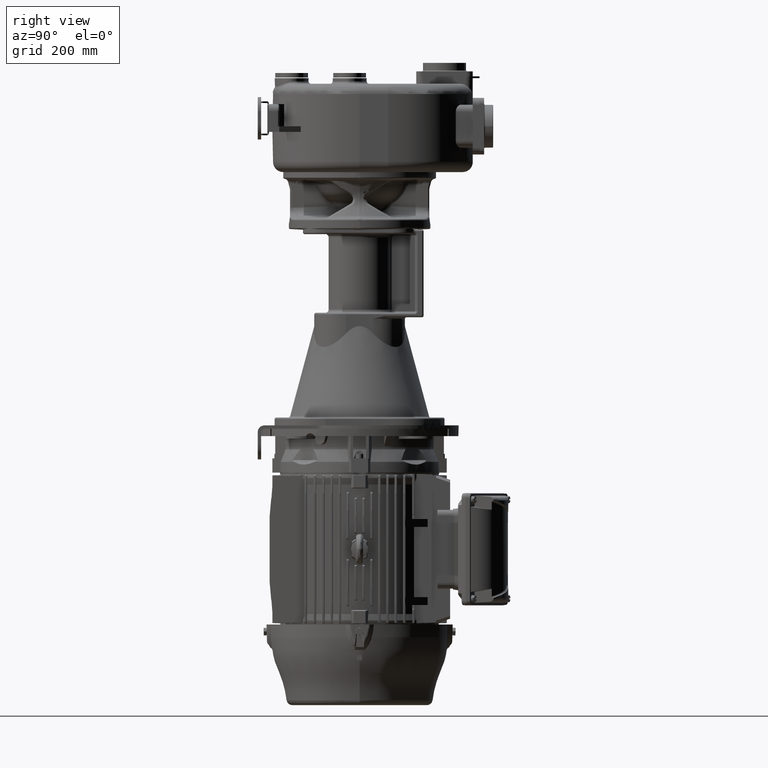
[diagram: clean part render]
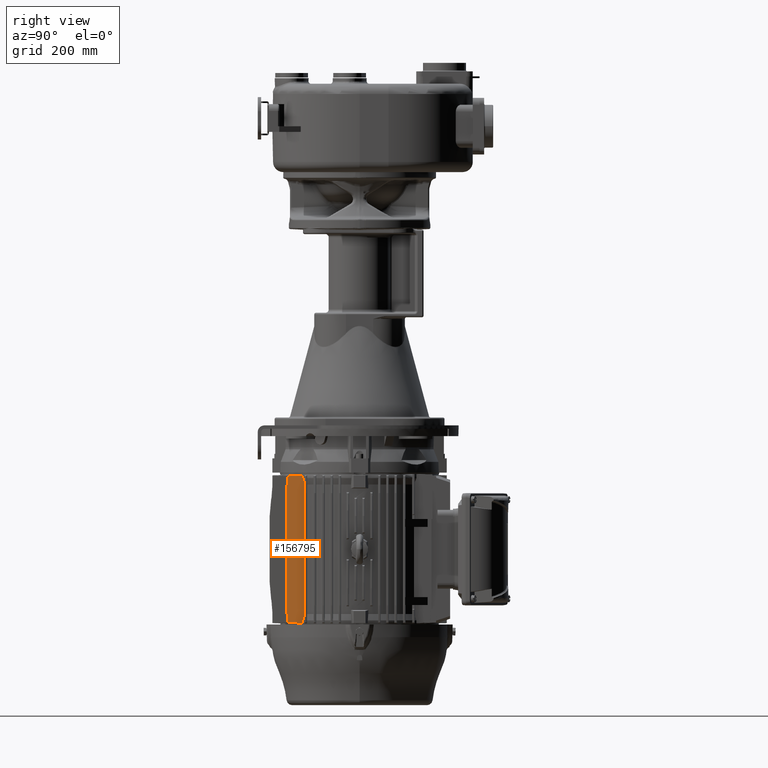
[diagram: same view with one face highlighted and labeled with its STEP entity id]
A machine part, right view. The second image highlights one B-rep face of the part: STEP entity #156795.
In plain terms, the highlighted planar face has unit normal (-0.9994, 0.0349, 0).
Its self-contained STEP definition (entity closure, byte-faithful):
#162=DIRECTION('',(0.E0,0.E0,-1.E0));
#163=VECTOR('',#162,5.080310671573E0);
#164=CARTESIAN_POINT('',(9.754995855830E1,5.958085050513E1,-6.405624659906E2));
#165=LINE('',#164,#163);
#33847=DIRECTION('',(1.398620638962E-14,1.258758575066E-14,-1.E0));
#33848=VECTOR('',#33847,5.080310671574E0);
#33849=CARTESIAN_POINT('',(9.754995855830E1,5.958085050513E1,
-8.969572233378E2));
#33850=LINE('',#33849,#33848);
#62765=CARTESIAN_POINT('',(9.754995855830E1,5.958085050513E1,
-9.020375340094E2));
#62766=CARTESIAN_POINT('',(9.752591515402E1,5.889233749030E1,
-9.019957928817E2));
#62767=CARTESIAN_POINT('',(9.747757728080E1,5.750812190960E1,
-9.019114117823E2));
#62768=CARTESIAN_POINT('',(9.740431481074E1,5.541015926105E1,
-9.017821377926E2));
#62769=CARTESIAN_POINT('',(9.733030408146E1,5.329076927190E1,
-9.016501778382E2));
#62770=CARTESIAN_POINT('',(9.725517344569E1,5.113930935687E1,
-9.015148572553E2));
#62771=CARTESIAN_POINT('',(9.717962708951E1,4.897594476686E1,
-9.013774445759E2));
#62772=CARTESIAN_POINT('',(9.710341428974E1,4.679349572937E1,
-9.012375046556E2));
#62773=CARTESIAN_POINT('',(9.702597563933E1,4.457594292261E1,
-9.010940005068E2));
#62774=CARTESIAN_POINT('',(9.694755482424E1,4.233026459906E1,
-9.009473694191E2));
#62775=CARTESIAN_POINT('',(9.686792439635E1,4.004994749715E1,
-9.007971776297E2));
#62776=CARTESIAN_POINT('',(9.678702288350E1,3.773323128451E1,
-9.006432873995E2));
#62777=CARTESIAN_POINT('',(9.670541780304E1,3.539636753134E1,
-9.004867787679E2));
#62778=CARTESIAN_POINT('',(9.664995732060E1,3.380818710921E1,
-9.003795609396E2));
#62779=CARTESIAN_POINT('',(9.662201182015E1,3.300793268023E1,
-9.003253223548E2));
#62793=DIRECTION('',(-3.489949670505E-2,-9.993908270190E-1,0.E0));
#62794=VECTOR('',#62793,1.500914316446E0);
#62795=CARTESIAN_POINT('',(9.662201182015E1,3.300793268023E1,-8.863E2));
#62796=LINE('',#62795,#62794);
#62809=DIRECTION('',(3.489949670505E-2,9.993908270190E-1,0.E0));
#62810=VECTOR('',#62809,1.500914316446E0);
#62811=CARTESIAN_POINT('',(9.656963066591E1,3.150793268023E1,-6.563E2));
#62812=LINE('',#62811,#62810);
#62830=CARTESIAN_POINT('',(9.662201182015E1,3.300793268023E1,
-6.422746776452E2));
#62831=CARTESIAN_POINT('',(9.664999466193E1,3.380925642489E1,
-6.422203665858E2));
#62832=CARTESIAN_POINT('',(9.670552311650E1,3.539938331430E1,
-6.421130179679E2));
#62833=CARTESIAN_POINT('',(9.678720931827E1,3.773857007786E1,
-6.419563561081E2));
#62834=CARTESIAN_POINT('',(9.686817322349E1,4.005707297409E1,
-6.418023507578E2));
#62835=CARTESIAN_POINT('',(9.694784458895E1,4.233856237466E1,
-6.416520862205E2));
#62836=CARTESIAN_POINT('',(9.702628870094E1,4.458490783406E1,
-6.415054166312E2));
#62837=CARTESIAN_POINT('',(9.710373270684E1,4.680261400218E1,
-6.413619079811E2));
#62838=CARTESIAN_POINT('',(9.717993206681E1,4.898467817414E1,
-6.412219981514E2));
#62839=CARTESIAN_POINT('',(9.725545296414E1,5.114731371795E1,
-6.410846369942E2));
#62840=CARTESIAN_POINT('',(9.733053733288E1,5.329744871869E1,
-6.409494044746E2));
#62841=CARTESIAN_POINT('',(9.740448646340E1,5.541507475015E1,
-6.408175581447E2));
#62842=CARTESIAN_POINT('',(9.747767199361E1,5.751083412972E1,
-6.406884225103E2));
#62843=CARTESIAN_POINT('',(9.752594842146E1,5.889329014526E1,
-6.406041493636E2));
#62844=CARTESIAN_POINT('',(9.754995855830E1,5.958085050513E1,
-6.405624659906E2));
#62851=CARTESIAN_POINT('',(9.662201182015E1,3.300793268023E1,
-6.422746776452E2));
#62867=DIRECTION('',(0.E0,-7.396567208698E-14,-1.E0));
#62868=VECTOR('',#62867,1.402532235481E1);
#62869=CARTESIAN_POINT('',(9.662201182015E1,3.300793268023E1,-8.863E2));
#62870=LINE('',#62869,#62868);
#62871=DIRECTION('',(0.E0,0.E0,-1.E0));
#62872=VECTOR('',#62871,2.3E2);
#62873=CARTESIAN_POINT('',(9.656963066591E1,3.150793268023E1,-6.563E2));
#62874=LINE('',#62873,#62872);
#62875=DIRECTION('',(0.E0,7.497890047174E-14,-1.E0));
#62876=VECTOR('',#62875,1.402532235480E1);
#62877=CARTESIAN_POINT('',(9.662201182015E1,3.300793268023E1,
-6.422746776452E2));
#62878=LINE('',#62877,#62876);
#62886=CARTESIAN_POINT('',(9.754995855830E1,5.958085050513E1,
-6.456427766622E2));
#62887=CARTESIAN_POINT('',(9.756083335680E1,5.989226398924E1,
-6.464481276638E2));
#62888=CARTESIAN_POINT('',(9.758250481363E1,6.051285331600E1,
-6.480490014791E2));
#62889=CARTESIAN_POINT('',(9.761477385462E1,6.143691774689E1,
-6.504206506447E2));
#62890=CARTESIAN_POINT('',(9.763613217200E1,6.204853993302E1,
-6.519823636430E2));
#62891=CARTESIAN_POINT('',(9.764677210992E1,6.235322789008E1,
-6.527583441431E2));
#62898=DIRECTION('',(0.E0,0.E0,-1.E0));
#62899=VECTOR('',#62898,2.370833117139E2);
#62900=CARTESIAN_POINT('',(9.764677210992E1,6.235322789008E1,
-6.527583441431E2));
#62901=LINE('',#62900,#62899);
#63266=CARTESIAN_POINT('',(9.764677210992E1,6.235322789008E1,
-8.898416558569E2));
#63267=CARTESIAN_POINT('',(9.763613210368E1,6.204853797661E1,
-8.906176413396E2));
#63268=CARTESIAN_POINT('',(9.761477369581E1,6.143691319915E1,
-8.921793609891E2));
#63269=CARTESIAN_POINT('',(9.758250465474E1,6.051284876585E1,
-8.945510102375E2));
#63270=CARTESIAN_POINT('',(9.756083328895E1,5.989226204633E1,
-8.961518773608E2));
#63271=CARTESIAN_POINT('',(9.754995855830E1,5.958085050513E1,
-8.969572233378E2));
#68544=CARTESIAN_POINT('',(9.656963066591E1,3.150793268023E1,-6.563E2));
#68546=VERTEX_POINT('',#68544);
#68957=CARTESIAN_POINT('',(9.754995855830E1,5.958085050513E1,
-6.405624659906E2));
#68959=VERTEX_POINT('',#68957);
#68969=CARTESIAN_POINT('',(9.754995855830E1,5.958085050513E1,
-6.456427766622E2));
#68970=VERTEX_POINT('',#68969);
#69729=VERTEX_POINT('',#62851);
#69830=VERTEX_POINT('',#62765);
#69831=VERTEX_POINT('',#62779);
#69902=CARTESIAN_POINT('',(9.656963066591E1,3.150793268023E1,-8.863E2));
#69903=VERTEX_POINT('',#69902);
#69915=CARTESIAN_POINT('',(9.662201182015E1,3.300793268023E1,-6.563E2));
#69916=VERTEX_POINT('',#69915);
#69925=CARTESIAN_POINT('',(9.662201182015E1,3.300793268023E1,-8.863E2));
#69926=VERTEX_POINT('',#69925);
#69933=VERTEX_POINT('',#62891);
#69934=VERTEX_POINT('',#63266);
#69935=VERTEX_POINT('',#63271);
#156773=CARTESIAN_POINT('',(9.662201182015E1,3.300793268023E1,-9.023E2));
#156774=DIRECTION('',(-9.993908270190E-1,3.489949670505E-2,0.E0));
#156775=DIRECTION('',(3.489949670505E-2,9.993908270190E-1,0.E0));
#156776=AXIS2_PLACEMENT_3D('',#156773,#156774,#156775);
#156777=PLANE('',#156776);
#156778=ORIENTED_EDGE('',*,*,#156685,.T.);
#156779=ORIENTED_EDGE('',*,*,#156697,.F.);
#156780=ORIENTED_EDGE('',*,*,#156713,.T.);
#156781=ORIENTED_EDGE('',*,*,#156725,.F.);
#156782=ORIENTED_EDGE('',*,*,#156739,.T.);
#156783=ORIENTED_EDGE('',*,*,#156754,.F.);
#156784=ORIENTED_EDGE('',*,*,#156766,.T.);
#156785=ORIENTED_EDGE('',*,*,#71826,.T.);
#156787=ORIENTED_EDGE('',*,*,#156786,.T.);
#156789=ORIENTED_EDGE('',*,*,#156788,.T.);
#156791=ORIENTED_EDGE('',*,*,#156790,.T.);
#156792=ORIENTED_EDGE('',*,*,#122435,.T.);
#156793=EDGE_LOOP('',(#156778,#156779,#156780,#156781,#156782,#156783,#156784,
#156785,#156787,#156789,#156791,#156792));
#156794=FACE_OUTER_BOUND('',#156793,.F.);
#156795=ADVANCED_FACE('',(#156794),#156777,.F.);
#62780=B_SPLINE_CURVE_WITH_KNOTS('',3,(#62765,#62766,#62767,#62768,#62769,
#62770,#62771,#62772,#62773,#62774,#62775,#62776,#62777,#62778,#62779),
.UNSPECIFIED.,.F.,.F.,(4,1,1,1,1,1,1,1,1,1,1,1,4),(0.E0,8.333333333333E-2,
1.666666666667E-1,2.5E-1,3.333333333333E-1,4.166666666667E-1,5.E-1,
5.833333333333E-1,6.666666666667E-1,7.5E-1,8.333333333333E-1,9.166666666667E-1,
1.E0),.UNSPECIFIED.);
#62845=B_SPLINE_CURVE_WITH_KNOTS('',3,(#62830,#62831,#62832,#62833,#62834,
#62835,#62836,#62837,#62838,#62839,#62840,#62841,#62842,#62843,#62844),
.UNSPECIFIED.,.F.,.F.,(4,1,1,1,1,1,1,1,1,1,1,1,4),(0.E0,8.333333333333E-2,
1.666666666667E-1,2.5E-1,3.333333333333E-1,4.166666666667E-1,5.E-1,
5.833333333333E-1,6.666666666667E-1,7.5E-1,8.333333333333E-1,9.166666666667E-1,
1.E0),.UNSPECIFIED.);
#62892=B_SPLINE_CURVE_WITH_KNOTS('',3,(#62886,#62887,#62888,#62889,#62890,
#62891),.UNSPECIFIED.,.F.,.F.,(4,1,1,4),(0.E0,3.333333333333E-1,
6.666666666667E-1,1.E0),.UNSPECIFIED.);
#63272=B_SPLINE_CURVE_WITH_KNOTS('',3,(#63266,#63267,#63268,#63269,#63270,
#63271),.UNSPECIFIED.,.F.,.F.,(4,1,1,4),(0.E0,3.333333333333E-1,
6.666666666667E-1,1.E0),.UNSPECIFIED.);
#71826=EDGE_CURVE('',#68959,#68970,#165,.T.);
#122435=EDGE_CURVE('',#69935,#69830,#33850,.T.);
#156685=EDGE_CURVE('',#69830,#69831,#62780,.T.);
#156697=EDGE_CURVE('',#69926,#69831,#62870,.T.);
#156713=EDGE_CURVE('',#69926,#69903,#62796,.T.);
#156725=EDGE_CURVE('',#68546,#69903,#62874,.T.);
#156739=EDGE_CURVE('',#68546,#69916,#62812,.T.);
#156754=EDGE_CURVE('',#69729,#69916,#62878,.T.);
#156766=EDGE_CURVE('',#69729,#68959,#62845,.T.);
#156786=EDGE_CURVE('',#68970,#69933,#62892,.T.);
#156788=EDGE_CURVE('',#69933,#69934,#62901,.T.);
#156790=EDGE_CURVE('',#69934,#69935,#63272,.T.);